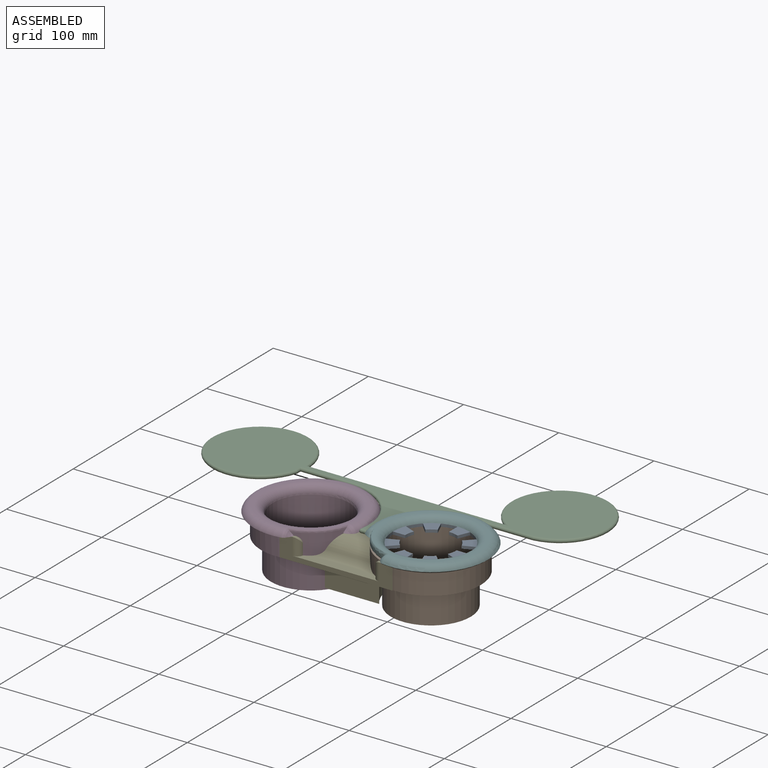
[diagram: assembled view]
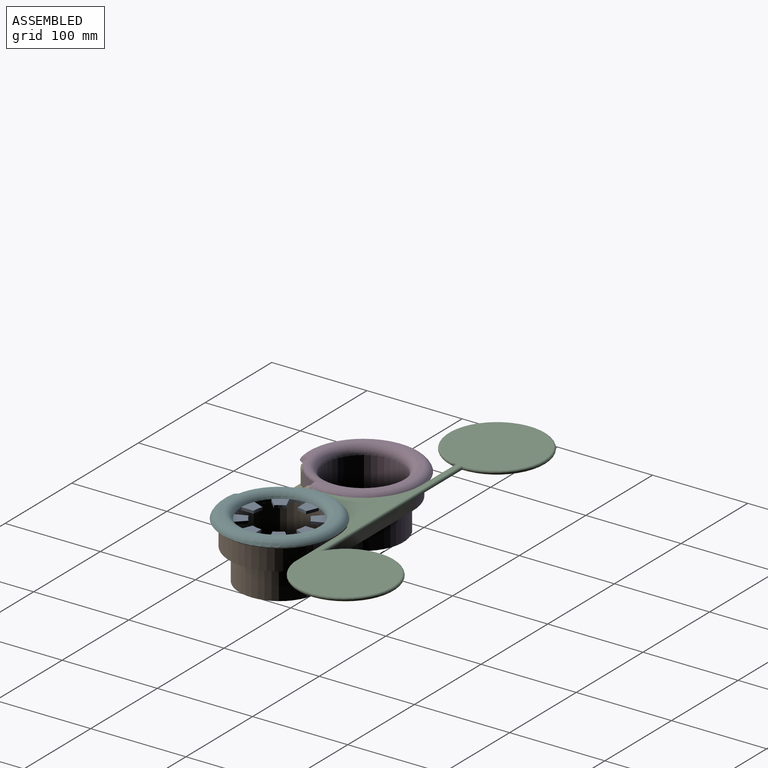
[diagram: assembled view, second angle]
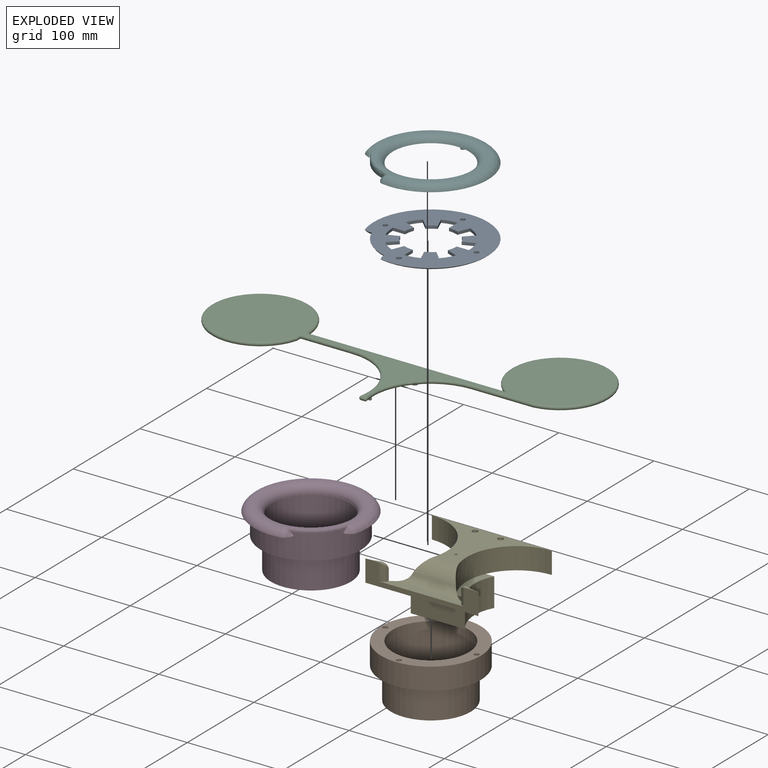
[diagram: exploded view]
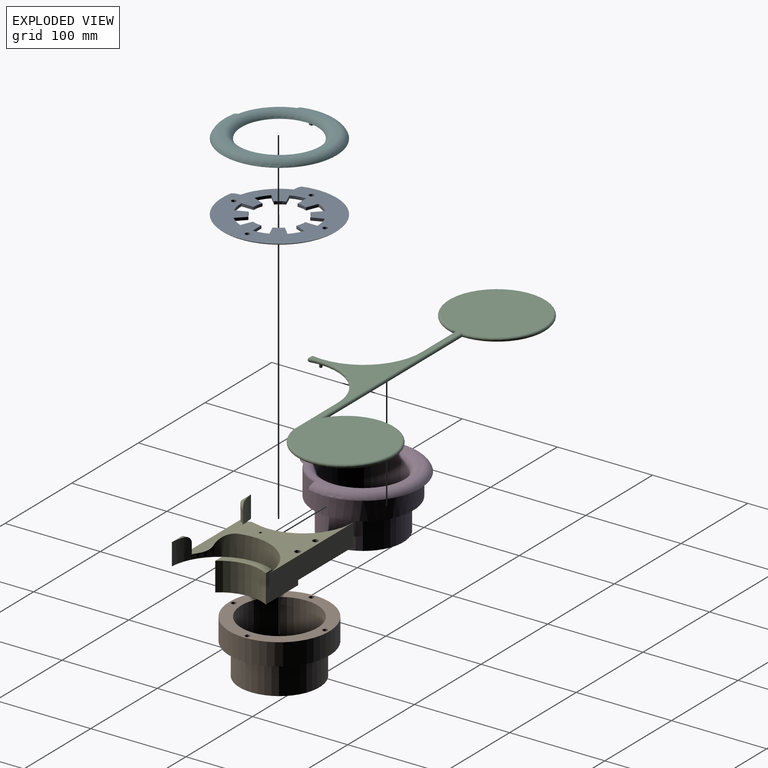
[diagram: exploded view, second angle]
ASSEMBLY  parts=6 mates=5
PART A: 44 faces, bbox 138.3x138.3x12.3 mm
  f0: plane 122.25x122.25mm, normal (0,0,1), area 7141.7mm2, adj f2,f3,f4,f5,f6,f7,f8,f9
  f1: plane 105.72x105.72mm, normal (0,0,-1), area 4773.1mm2, adj f2,f3,f4,f5,f6,f7,f8,f9
  f2: torus R=52.86mm, axis (0,0,-1), area 2346.9mm2, adj f0,f1,f40,f42
  f3: cylinder r=27.12mm len=10.38mm, axis (0,0,-1), area 31.9mm2, adj f0,f1,f4,f38
  f4: plane 11.9x4.93mm, normal (0.38,0.92,0), area 38.6mm2, adj f0,f1,f3,f5
  f5: cylinder r=40mm len=12.98mm, axis (0,0,-1), area 47.1mm2, adj f0,f1,f4,f6
  f6: plane 9.11x9.11mm, normal (-0.71,-0.71,0), area 38.6mm2, adj f0,f1,f5,f7
  f7: cylinder r=27.12mm len=8.8mm, axis (0,0,-1), area 31.9mm2, adj f0,f1,f6,f8
  f8: plane 11.9x4.93mm, normal (0.92,0.38,0), area 38.6mm2, adj f0,f1,f7,f9
  f9: cylinder r=40mm len=15.31mm, axis (0,0,-1), area 47.1mm2, adj f0,f1,f8,f10
  f10: plane 12.88x3mm, normal (-1,0,0), area 38.6mm2, adj f0,f1,f9,f11
  f11: cylinder r=27.12mm len=10.38mm, axis (0,0,-1), area 31.9mm2, adj f0,f1,f10,f12
  f12: plane 11.9x4.93mm, normal (0.92,-0.38,0), area 38.6mm2, adj f0,f1,f11,f13
  f13: cylinder r=40mm len=12.98mm, axis (0,0,-1), area 47.1mm2, adj f0,f1,f12,f14
  f14: plane 9.11x9.11mm, normal (-0.71,0.71,0), area 38.6mm2, adj f0,f1,f13,f15
  f15: cylinder r=27.12mm len=8.8mm, axis (0,0,-1), area 31.9mm2, adj f0,f1,f14,f16
  f16: plane 11.9x4.93mm, normal (0.38,-0.92,0), area 38.6mm2, adj f0,f1,f15,f17
  f17: cylinder r=40mm len=15.31mm, axis (0,0,-1), area 47.1mm2, adj f0,f1,f16,f18
  f18: plane 12.88x3mm, normal (0,1,0), area 38.6mm2, adj f0,f1,f17,f19
  f19: cylinder r=27.12mm len=10.38mm, axis (0,0,-1), area 31.9mm2, adj f0,f1,f18,f20
  f20: plane 11.9x4.93mm, normal (-0.38,-0.92,0), area 38.6mm2, adj f0,f1,f19,f21
  f21: cylinder r=40mm len=12.98mm, axis (0,0,-1), area 47.1mm2, adj f0,f1,f20,f22
  f22: plane 9.11x9.11mm, normal (0.71,0.71,0), area 38.6mm2, adj f0,f1,f21,f23
  f23: cylinder r=27.12mm len=8.8mm, axis (0,0,-1), area 31.9mm2, adj f0,f1,f22,f24
  f24: plane 11.9x4.93mm, normal (-0.92,-0.38,0), area 38.6mm2, adj f0,f1,f23,f25
  f25: cylinder r=40mm len=15.31mm, axis (0,0,-1), area 47.1mm2, adj f0,f1,f24,f26
  f26: plane 12.88x3mm, normal (1,0,0), area 38.6mm2, adj f0,f1,f25,f27
  f27: cylinder r=27.12mm len=10.38mm, axis (0,0,-1), area 31.9mm2, adj f0,f1,f26,f28
  f28: plane 11.9x4.93mm, normal (-0.92,0.38,0), area 38.6mm2, adj f0,f1,f27,f29
  f29: cylinder r=40mm len=12.98mm, axis (0,0,-1), area 47.1mm2, adj f0,f1,f28,f30
  f30: plane 9.11x9.11mm, normal (0.71,-0.71,0), area 38.6mm2, adj f0,f1,f29,f31
  f31: cylinder r=27.12mm len=8.8mm, axis (0,0,-1), area 31.9mm2, adj f0,f1,f30,f32
  f32: plane 11.9x4.93mm, normal (-0.38,0.92,0), area 38.6mm2, adj f0,f1,f31,f33
  f33: cylinder r=40mm len=15.31mm, axis (0,0,-1), area 47.1mm2, adj f0,f1,f32,f38
  f34: cylinder r=2.5mm len=5mm, axis (0,0,-1), area 47.1mm2, adj f0,f1
  f35: cylinder r=2.5mm len=5mm, axis (0,0,-1), area 47.1mm2, adj f0,f1
  f36: cylinder r=2.5mm len=5mm, axis (0,0,-1), area 47.1mm2, adj f0,f1
  f37: cylinder r=2.5mm len=5mm, axis (0,0,-1), area 47.1mm2, adj f0,f1
  f38: plane 12.88x3mm, normal (0,-1,0), area 38.6mm2, adj f0,f1,f3,f33
  f39: torus R=47.92mm, axis (0,0,-1), area 290.6mm2, adj f0,f1,f41,f43
  f40: bspline ~7.71x7.33mm, area 14.5mm2, adj f0,f2,f41
  f41: plane 5.21x3mm, normal (0,-0.71,-0.71), area 9.5mm2, adj f0,f1,f39,f40
  f42: bspline ~7.4x7.39mm, area 14.8mm2, adj f0,f2,f43
  f43: plane 5.06x3mm, normal (-0.71,0,-0.71), area 8.6mm2, adj f0,f1,f39,f42
PART B: 14 faces, bbox 105x105x56 mm
  f0: cylinder r=40mm len=80mm, axis (0,0,-1), area 14074.3mm2, adj f2,f5
  f1: cylinder r=52.5mm len=105mm, axis (0,0,-1), area 7586.9mm2, adj f2,f3
  f2: plane 105x105mm, normal (0,0,1), area 3553.9mm2, adj f0,f1,f6,f8,f10,f12
  f3: plane 105x105mm, normal (0,0,-1), area 3117.2mm2, adj f1,f4
  f4: cylinder r=42mm len=84mm, axis (0,0,1), area 8708.5mm2, adj f3,f5
  f5: plane 84x84mm, normal (0,0,-1), area 515.2mm2, adj f0,f4
  f6: cylinder r=2.5mm len=20mm, axis (0,0,-1), area 314.2mm2, adj f2,f7
  f7: plane 5x5mm, normal (0,0,1), area 19.6mm2, adj f6
  f8: cylinder r=2.5mm len=20mm, axis (0,0,-1), area 314.2mm2, adj f2,f9
  f9: plane 5x5mm, normal (0,0,1), area 19.6mm2, adj f8
  f10: cylinder r=2.5mm len=20mm, axis (0,0,-1), area 314.2mm2, adj f2,f11
  f11: plane 5x5mm, normal (0,0,1), area 19.6mm2, adj f10
  f12: cylinder r=2.5mm len=20mm, axis (0,0,-1), area 314.2mm2, adj f2,f13
  f13: plane 5x5mm, normal (0,0,1), area 19.6mm2, adj f12
PART C: 20 faces, bbox 395.9x178.2x7 mm
  f0: plane 8.86x3.91mm, normal (0,0,-1), area 23.9mm2, adj f1,f2,f12,f16
  f1: torus R=62mm, axis (0,0,1), area 668.9mm2, adj f0,f3,f4,f5,f10,f16
  f2: torus R=62mm, axis (0,0,1), area 668.8mm2, adj f0,f3,f4,f11,f13,f16
  f3: plane 383.53x169.99mm, normal (0,0,1), area 17722.8mm2, adj f1,f2,f5,f6,f7,f8,f9,f11
  f4: plane 383.53x158.98mm, normal (0,0,-1), area 17636.8mm2, adj f1,f2,f5,f6,f7,f8,f9,f11
  f5: cylinder r=2mm len=64.63mm, axis (-1,0,0), area 405.6mm2, adj f1,f3,f4,f6
  f6: torus R=48.8mm, axis (0,0,1), area 1763.5mm2, adj f3,f4,f5,f7
  f7: cylinder r=2mm len=216.14mm, axis (-1,0,0), area 1318.8mm2, adj f3,f4,f6,f8
  f8: torus R=48.8mm, axis (0,0,1), area 1899mm2, adj f3,f4,f7,f9
  f9: cylinder r=2mm len=6.69mm, axis (0,1,0), area 33.4mm2, adj f3,f4,f8,f11
  f10: sphere r=2mm, area 14mm2, adj f1,f12
  f11: cylinder r=2mm len=54mm, axis (1,0,0), area 331.3mm2, adj f2,f3,f4,f9
  f12: cylinder r=2mm len=4mm, axis (1,0,0), area 24.5mm2, adj f0,f3,f10,f13
  f13: sphere r=2mm, area 14mm2, adj f2,f12
  f14: cylinder r=3mm len=6mm, axis (0,0,-1), area 56.5mm2, adj f4,f15
  f15: plane 6x6mm, normal (0,0,-1), area 28.3mm2, adj f14
  f16: cylinder r=1.5mm len=3.07mm, axis (0,0,-1), area 28.4mm2, adj f0,f1,f2,f4,f17
  f17: plane 3x3mm, normal (0,0,-1), area 7.1mm2, adj f16
  f18: cylinder r=3mm len=6mm, axis (0,0,-1), area 56.5mm2, adj f4,f19
  f19: plane 6x6mm, normal (0,0,-1), area 28.3mm2, adj f18
PART D: 18 faces, bbox 131.3x131.3x62.4 mm
  f0: bspline ~14.35x8.64mm, area 32.3mm2, adj f7,f12,f15,f17
  f1: plane 105x105mm, normal (0,0,-1), area 3115.6mm2, adj f3,f4,f10,f11,f12
  f2: cylinder r=40mm len=80mm, axis (0,0,-1), area 13320.4mm2, adj f5,f8
  f3: cylinder r=52.5mm len=105mm, axis (0,0,-1), area 6616.2mm2, adj f1,f7,f10,f11,f12,f13,f14
  f4: cylinder r=42mm len=84mm, axis (0,0,1), area 8708.5mm2, adj f1,f5
  f5: plane 84x84mm, normal (0,0,-1), area 515.2mm2, adj f2,f4
  f6: plane 103.14x103.14mm, normal (0,0,1), area 794.1mm2, adj f8,f9,f17
  f7: plane 120.27x120.27mm, normal (0,0,-1), area 2247.1mm2, adj f0,f3,f9,f14,f15,f16
  f8: torus R=49mm, axis (0,0,1), area 3843.6mm2, adj f2,f6
  f9: torus R=51.51mm, axis (0,0,-1), area 3210.3mm2, adj f6,f7,f15,f16
  f10: plane 20.79x0.02mm, normal (0,-1,0), area 0.5mm2, adj f1,f3,f12,f13
  f11: plane 22.7x0.06mm, normal (1,0,0), area 1.3mm2, adj f1,f3,f12,f14
  f12: cylinder r=52.5mm len=35.93mm, axis (0,0,-1), area 1131.3mm2, adj f0,f1,f3,f10,f11,f13,f14,f17
  f13: bspline ~9.26x8.37mm, area 0mm2, adj f3,f10,f12
  f14: bspline ~12.5x8.42mm, area 30.6mm2, adj f3,f7,f11,f12,f16,f17
  f15: bspline ~10.44x6.61mm, area 36.5mm2, adj f0,f7,f9,f17
  f16: bspline ~9.95x7.1mm, area 37.2mm2, adj f7,f9,f14,f17
  f17: bspline ~41.94x38.72mm, area 152.7mm2, adj f0,f6,f12,f14,f15,f16
PART E: 31 faces, bbox 126x105x53 mm
  f0: plane 126x30.92mm, normal (0,0,-1), area 1779mm2, adj f1,f2,f5,f7,f8,f20
  f1: cylinder r=52.5mm len=104.87mm, axis (0,0,-1), area 3279.1mm2, adj f0,f3,f5,f6,f9,f10,f11,f12
  f2: cylinder r=52.5mm len=104.87mm, axis (0,0,-1), area 3292.5mm2, adj f0,f4,f6,f7,f9,f10,f11,f12
  f3: plane 13.57x2.77mm, normal (0,0,1), area 14.6mm2, adj f1,f6,f14
  f4: plane 14.16x2.98mm, normal (0,0,1), area 16.3mm2, adj f2,f6,f16
  f5: plane 23x0.13mm, normal (-1,0,0), area 2.9mm2, adj f0,f1,f8,f9
  f6: plane 118.73x23mm, normal (0,-1,0), area 1095.7mm2, adj f1,f2,f3,f4,f10,f11,f13,f14
  f7: plane 23x0.13mm, normal (1,0,0), area 2.9mm2, adj f0,f2,f8,f9
  f8: plane 126x23mm, normal (0,1,0), area 2898mm2, adj f0,f5,f7,f9
  f9: plane 126x68.35mm, normal (0,0,1), area 2593.1mm2, adj f1,f2,f5,f7,f8,f12,f25,f27
  f10: plane 118.73x24.08mm, normal (0,0,-1), area 1525.1mm2, adj f1,f2,f6,f22
  f11: plane 90.84x9.15mm, normal (0,0,1), area 706.8mm2, adj f1,f2,f6,f13,f15,f17
  f12: cylinder r=20mm len=46.09mm, axis (1,0,0), area 828.5mm2, adj f1,f2,f9,f17
  f13: cylinder r=7mm len=18mm, axis (0,0,-1), area 154.3mm2, adj f1,f6,f11,f14
  f14: cylinder r=7mm len=7mm, axis (0,1,0), area 24.9mm2, adj f1,f3,f6,f13
  f15: cylinder r=7mm len=18mm, axis (0,0,-1), area 158.7mm2, adj f2,f6,f11,f16
  f16: cylinder r=7mm len=7mm, axis (0,-1,0), area 27mm2, adj f2,f4,f6,f15
  f17: cylinder r=10mm len=66.4mm, axis (1,0,0), area 627.1mm2, adj f1,f2,f11,f12
  f18: plane 50x18.11mm, normal (0,0,1), area 422mm2, adj f2,f19,f20,f22
  f19: cylinder r=44.5mm len=50mm, axis (0,0,1), area 1599.9mm2, adj f18,f20,f22,f23
  f20: plane 48.37x30mm, normal (0,1,0), area 1451.1mm2, adj f0,f18,f19,f21,f23,f24
  f21: cylinder r=44.5mm len=50mm, axis (0,0,1), area 1599.9mm2, adj f20,f22,f23,f24
  f22: plane 57.21x30mm, normal (0,-1,0), area 1716.3mm2, adj f10,f18,f19,f21,f23,f24
  f23: plane 57.21x50mm, normal (0,0,-1), area 2110.9mm2, adj f19,f20,f21,f22
  f24: plane 50x18.1mm, normal (0,0,1), area 421.4mm2, adj f1,f20,f21,f22
  f25: cylinder r=3mm len=6mm, axis (0,0,-1), area 66mm2, adj f9,f26
  f26: plane 6x6mm, normal (0,0,1), area 28.3mm2, adj f25
  f27: cylinder r=1.5mm len=3.5mm, axis (0,0,-1), area 33mm2, adj f9,f28
  f28: plane 3x3mm, normal (0,0,1), area 7.1mm2, adj f27
  f29: cylinder r=3mm len=6mm, axis (0,0,-1), area 66mm2, adj f9,f30
  f30: plane 6x6mm, normal (0,0,1), area 28.3mm2, adj f29
PART F: 18 faces, bbox 131.3x131.3x11.5 mm
  f0: plane 120.28x120.28mm, normal (0,0,-1), area 5830.3mm2, adj f1,f3,f4,f5,f6,f7,f8,f10
  f1: torus R=51.51mm, axis (0,0,-1), area 3220.1mm2, adj f0,f2,f7,f8
  f2: plane 103.03x103.03mm, normal (0,0,1), area 951.7mm2, adj f1,f3,f9
  f3: torus R=48.49mm, axis (0,0,1), area 3035.7mm2, adj f0,f2
  f4: cylinder r=52.5mm len=35.56mm, axis (0,0,-1), area 156.5mm2, adj f0,f5,f6,f9
  f5: bspline ~12.6x8.41mm, area 33mm2, adj f0,f4,f8,f9
  f6: bspline ~13.68x8.41mm, area 30.3mm2, adj f0,f4,f7,f9
  f7: bspline ~9.67x6.96mm, area 37.1mm2, adj f0,f1,f6,f9
  f8: bspline ~9.56x6.72mm, area 36.3mm2, adj f0,f1,f5,f9
  f9: torus R=48.5mm, axis (0,0,1), area 153mm2, adj f2,f4,f5,f6,f7,f8
  f10: cylinder r=2.25mm len=5mm, axis (0,0,-1), area 70.7mm2, adj f0,f11
  f11: plane 4.5x4.5mm, normal (0,0,-1), area 15.9mm2, adj f10
  f12: cylinder r=2.25mm len=5mm, axis (0,0,-1), area 70.7mm2, adj f0,f13
  f13: plane 4.5x4.5mm, normal (0,0,-1), area 15.9mm2, adj f12
  f14: cylinder r=2.25mm len=5mm, axis (0,0,-1), area 70.7mm2, adj f0,f15
  f15: plane 4.5x4.5mm, normal (0,0,-1), area 15.9mm2, adj f14
  f16: cylinder r=2.25mm len=5mm, axis (0,0,-1), area 70.7mm2, adj f0,f17
  f17: plane 4.5x4.5mm, normal (0,0,-1), area 15.9mm2, adj f16
PLACE A rot(axis=(0.13,0.09,0.99),0deg) t=(-69.75,-20.57,98.35)mm
PLACE B rot(axis=(0.13,0.09,0.99),0deg) t=(-69.75,-20.57,75.35)mm
PLACE C t=(-135.77,-72.95,74.35)mm
PLACE D rot(axis=(0.13,0.09,0.99),0deg) t=(-195.75,-20.57,74.85)mm
PLACE E rot(axis=(0.13,0.09,0.99),0deg) t=(-135.77,-72.95,74.85)mm
PLACE F rot(axis=(0.13,0.09,0.99),0deg) t=(-69.75,-20.57,77.35)mm
MATE fastened E.f2 <-> B.f1  axis (0,0,-1) through (-69.75,-20.57,74.85)mm
MATE fastened E.f1 <-> D.f3  axis (0,0,-1) through (-195.75,-20.57,86.35)mm
MATE fastened B.f8 <-> F.f14  axis (0,0,1) through (-69.75,-68.57,98.35)mm
MATE fastened F.f14 <-> A.f36  axis (0,0,-1) through (-69.75,-68.57,98.85)mm
MATE slider E.f25 <-> C.f18  axis (0,0,-1) through (-119.73,26.64,94.35)mm
